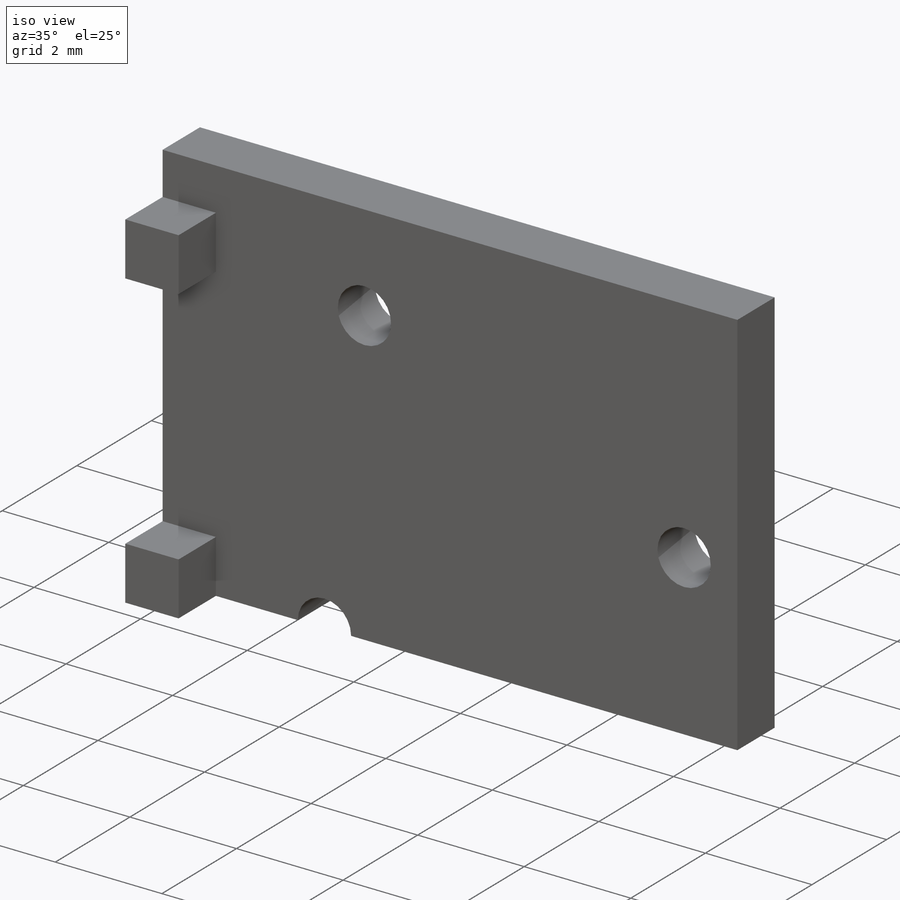
[diagram: iso view]
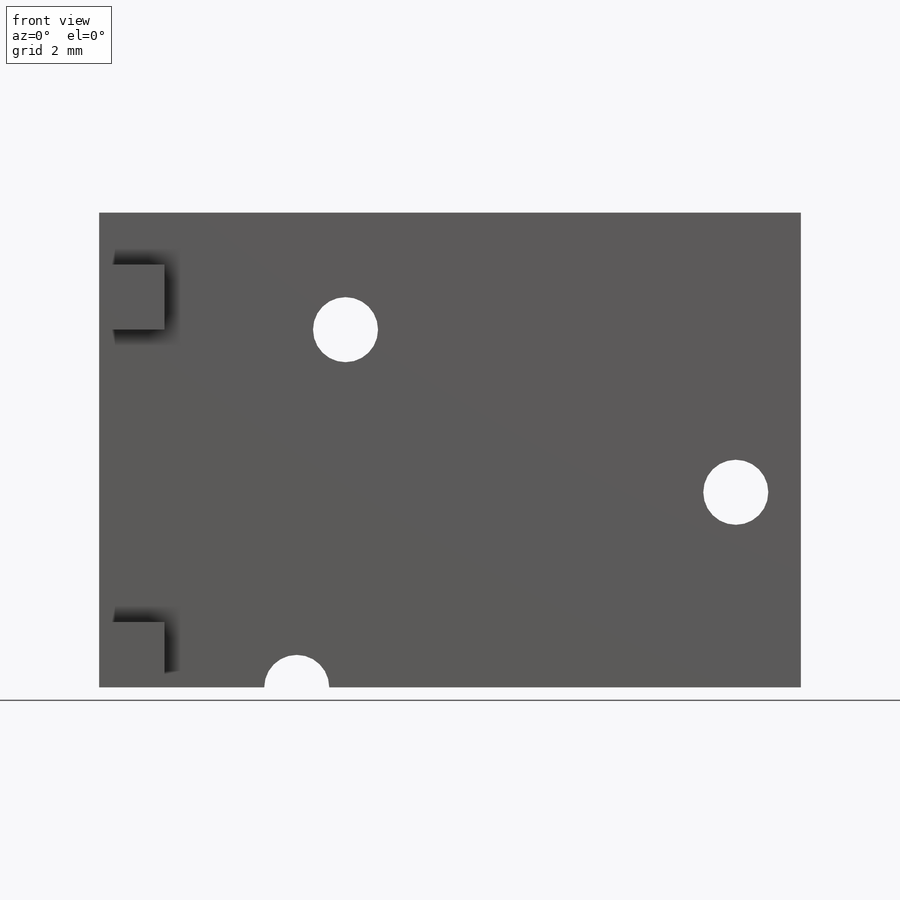
[diagram: front view]
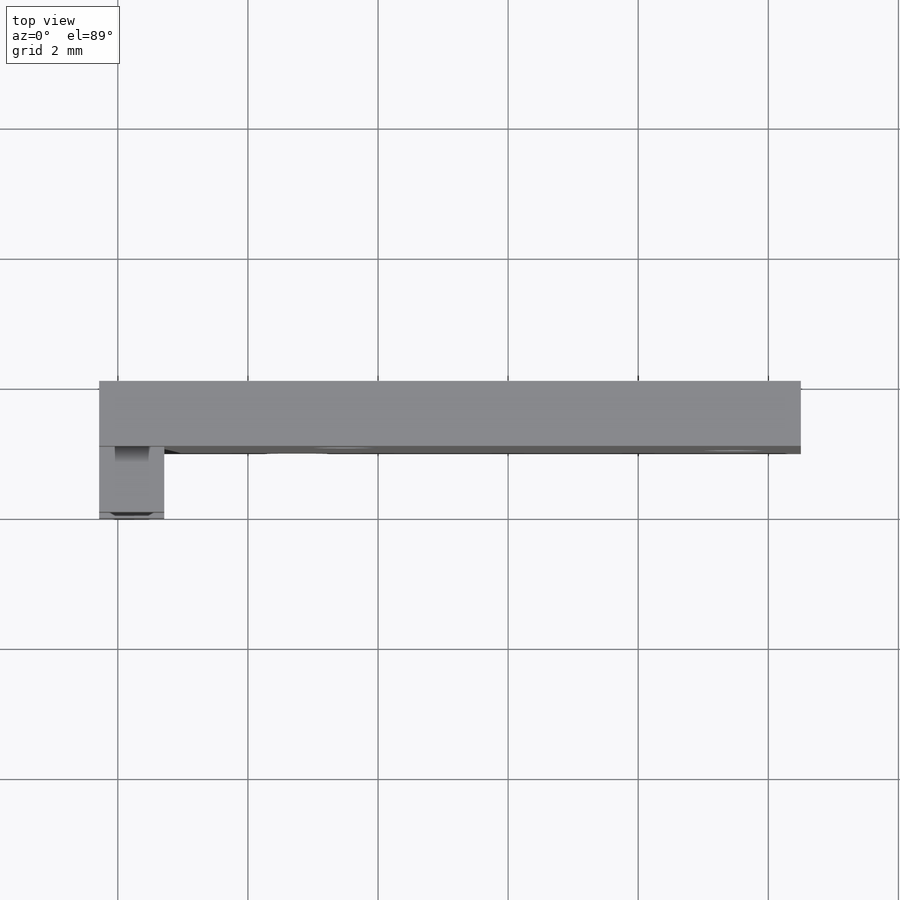
[diagram: top view]
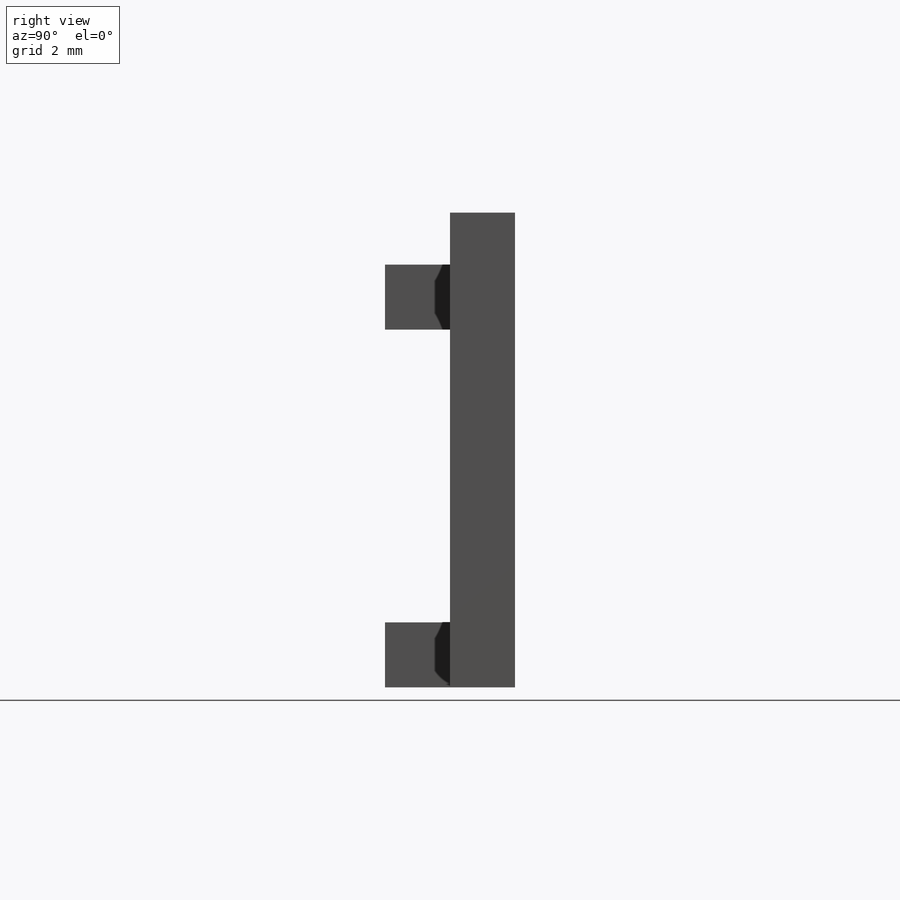
[diagram: right view]
SOLIDWORKS PART (.sldprt)
format: sldprt  version: not decoded by parser v0  size: 189,952 bytes
history: native  units: mm
features: sketch x4, extrude x4, material x1 (+11 scaffold rows collapsed)
feature tree (20):
  scaffold x11  (default folders/planes/origin — collapsed)
  material  "Material <not specified>"
  sketch  "Sketch1"  dims[c1.D3=1.0mm c1.D4=1.0mm c1.D5=1.0mm c1.D6=1.0mm c1.D7=1.0mm c1.D1=9.0mm c1.D2=6.5mm c2.D4=1.0mm c2.D5=2.0mm c2.D6=1.0mm c2.D7=3.0mm c2.D8=7.75mm]
  extrude  "Front Face Ext"  Depth=1mm
  sketch  "Sketch2"
  extrude  "Boss-Extrude1"  Depth=1.7874mm
  sketch  "Sketch3"  dims[D1=1.0mm D2=1.0mm]
  extrude  "Boss-Extrude2"  Depth=1mm
  sketch  "Sketch4"
  extrude  "Boss-Extrude3"  Depth=0.8mm
decode coverage: 6 of 8 modeling features carry decoded parameters
note: suppression state not decoded; provenance and decode notes live in map.json
